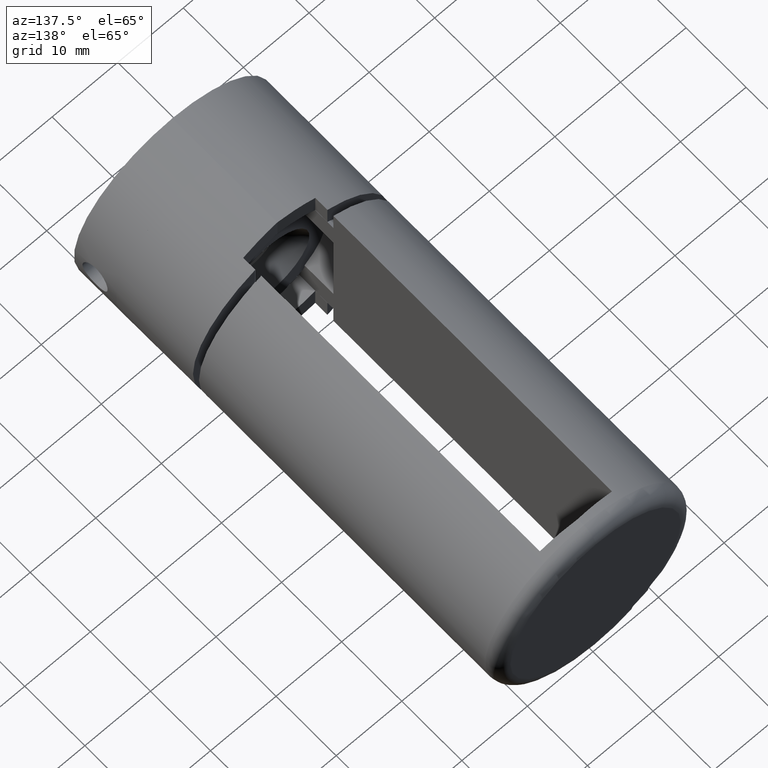
[diagram: clean part render]
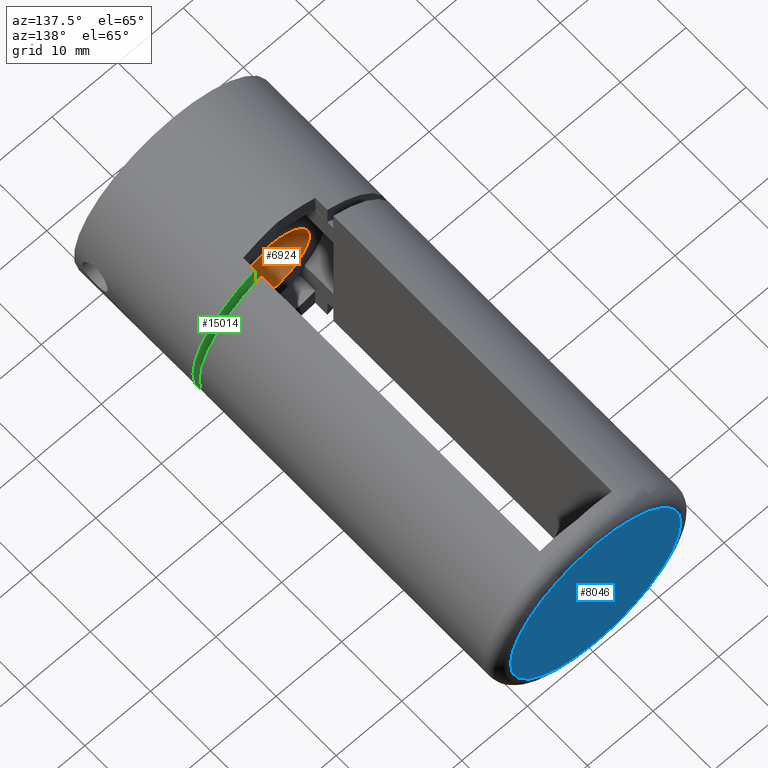
[diagram: same view with three faces highlighted in distinct colors, each labeled with its STEP entity id]
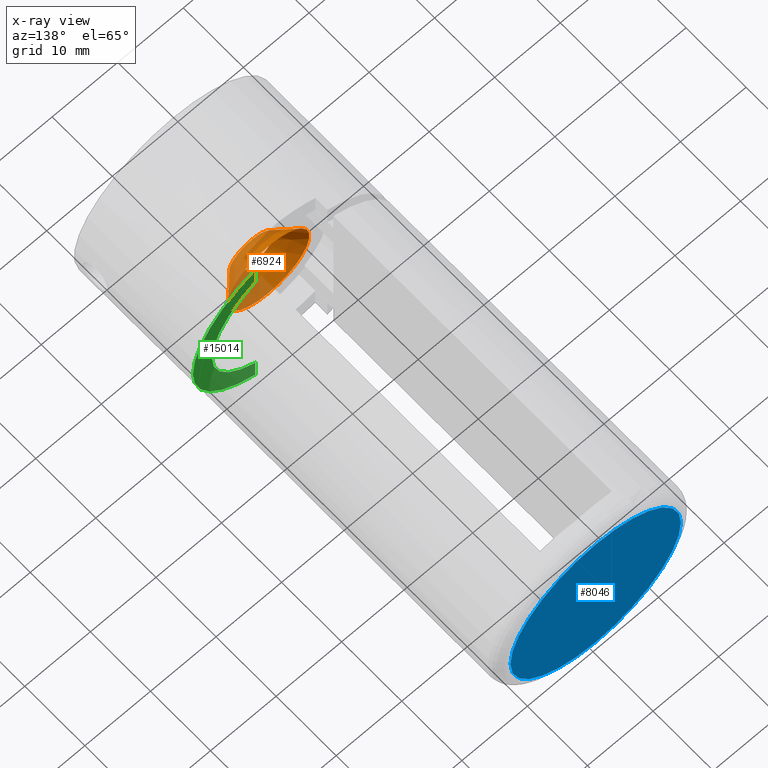
[diagram: x-ray of the same camera — body ghosted, the three highlighted faces saturated]
A machine part, auxiliary view with three faces highlighted in distinct colors.
The next image is the same camera in x-ray (body ghosted, the three faces saturated) — at least one of them is partly hidden behind the body in this view.
Their STEP definitions:

[orange] entity #6924 — the highlighted conical surface has half-angle 45 deg.
#597 = VERTEX_POINT ( 'NONE', #4215 ) ;
#1242 = CIRCLE ( 'NONE', #8287, 3.399999999999997700 ) ;
#2952 = DIRECTION ( 'NONE',  ( 0.0000000000000000000, 0.0000000000000000000, 1.000000000000000000 ) ) ;
#3055 = CARTESIAN_POINT ( 'NONE',  ( 0.0000000000000000000, 16.00000000000000000, 0.0000000000000000000 ) ) ;
#4163 = EDGE_CURVE ( 'NONE', #7113, #7113, #1242, .T. ) ;
#4215 = CARTESIAN_POINT ( 'NONE',  ( 0.0000000000000000000, 16.00000000000000000, 6.250000000000000000 ) ) ;
#4744 = DIRECTION ( 'NONE',  ( 0.0000000000000000000, 0.0000000000000000000, 1.000000000000000000 ) ) ;
#5565 = ORIENTED_EDGE ( 'NONE', *, *, #4163, .T. ) ;
#5615 = CONICAL_SURFACE ( 'NONE', #16265, 6.250000000000000000, 0.7853981633974487200 ) ;
#6924 = ADVANCED_FACE ( 'NONE', ( #13074, #9554 ), #5615, .F. ) ;
#7093 = DIRECTION ( 'NONE',  ( 0.0000000000000000000, 0.0000000000000000000, 1.000000000000000000 ) ) ;
#7113 = VERTEX_POINT ( 'NONE', #14892 ) ;
#7129 = DIRECTION ( 'NONE',  ( -0.0000000000000000000, 1.000000000000000000, -0.0000000000000000000 ) ) ;
#7160 = AXIS2_PLACEMENT_3D ( 'NONE', #13694, #15064, #7093 ) ;
#8287 = AXIS2_PLACEMENT_3D ( 'NONE', #14001, #15348, #4744 ) ;
#9554 = FACE_OUTER_BOUND ( 'NONE', #13765, .T. ) ;
#9604 = CIRCLE ( 'NONE', #7160, 6.250000000000000000 ) ;
#12006 = EDGE_CURVE ( 'NONE', #597, #597, #9604, .T. ) ;
#13074 = FACE_BOUND ( 'NONE', #16506, .T. ) ;
#13694 = CARTESIAN_POINT ( 'NONE',  ( 0.0000000000000000000, 16.00000000000000000, 0.0000000000000000000 ) ) ;
#13765 = EDGE_LOOP ( 'NONE', ( #14622 ) ) ;
#14001 = CARTESIAN_POINT ( 'NONE',  ( 0.0000000000000000000, 13.15000000000000000, 0.0000000000000000000 ) ) ;
#14622 = ORIENTED_EDGE ( 'NONE', *, *, #12006, .T. ) ;
#14892 = CARTESIAN_POINT ( 'NONE',  ( 0.0000000000000000000, 13.15000000000000000, 3.399999999999997700 ) ) ;
#15064 = DIRECTION ( 'NONE',  ( -0.0000000000000000000, 1.000000000000000000, -0.0000000000000000000 ) ) ;
#15348 = DIRECTION ( 'NONE',  ( 0.0000000000000000000, -1.000000000000000000, 0.0000000000000000000 ) ) ;
#16265 = AXIS2_PLACEMENT_3D ( 'NONE', #3055, #7129, #2952 ) ;
#16506 = EDGE_LOOP ( 'NONE', ( #5565 ) ) ;

[blue] entity #8046 — the highlighted planar face has unit normal (0, 1, 0).
#88 = AXIS2_PLACEMENT_3D ( 'NONE', #6239, #5996, #7359 ) ;
#2644 = CIRCLE ( 'NONE', #88, 13.00000000000000000 ) ;
#5996 = DIRECTION ( 'NONE',  ( 0.0000000000000000000, -1.000000000000000000, 0.0000000000000000000 ) ) ;
#6239 = CARTESIAN_POINT ( 'NONE',  ( 0.0000000000000000000, 1.500000000000000000, 0.0000000000000000000 ) ) ;
#6331 = PLANE ( 'NONE',  #16578 ) ;
#6379 = EDGE_CURVE ( 'NONE', #13322, #13322, #2644, .T. ) ;
#7359 = DIRECTION ( 'NONE',  ( 0.0000000000000000000, 0.0000000000000000000, -1.000000000000000000 ) ) ;
#7887 = FACE_OUTER_BOUND ( 'NONE', #12781, .T. ) ;
#8046 = ADVANCED_FACE ( 'NONE', ( #7887 ), #6331, .T. ) ;
#8946 = DIRECTION ( 'NONE',  ( 0.0000000000000000000, -0.0000000000000000000, -1.000000000000000000 ) ) ;
#10226 = CARTESIAN_POINT ( 'NONE',  ( 0.0000000000000000000, 1.500000000000000000, 0.0000000000000000000 ) ) ;
#10837 = ORIENTED_EDGE ( 'NONE', *, *, #6379, .T. ) ;
#12781 = EDGE_LOOP ( 'NONE', ( #10837 ) ) ;
#12977 = DIRECTION ( 'NONE',  ( 0.0000000000000000000, -1.000000000000000000, 0.0000000000000000000 ) ) ;
#13322 = VERTEX_POINT ( 'NONE', #15015 ) ;
#15015 = CARTESIAN_POINT ( 'NONE',  ( 0.0000000000000000000, 1.500000000000000000, -13.00000000000000000 ) ) ;
#16578 = AXIS2_PLACEMENT_3D ( 'NONE', #10226, #12977, #8946 ) ;

[green] entity #15014 — the highlighted planar face has unit normal (0, -1, 0).
#141 = ORIENTED_EDGE ( 'NONE', *, *, #4504, .T. ) ;
#600 = VERTEX_POINT ( 'NONE', #9974 ) ;
#842 = AXIS2_PLACEMENT_3D ( 'NONE', #16686, #4764, #6237 ) ;
#875 = CARTESIAN_POINT ( 'NONE',  ( 0.0000000000000000000, 0.0000000000000000000, 0.0000000000000000000 ) ) ;
#1018 = VECTOR ( 'NONE', #4441, 1000.000000000000000 ) ;
#1786 = LINE ( 'NONE', #5391, #12025 ) ;
#2154 = DIRECTION ( 'NONE',  ( 0.0000000000000000000, 1.000000000000000000, 0.0000000000000000000 ) ) ;
#2223 = VERTEX_POINT ( 'NONE', #17004 ) ;
#3059 = CIRCLE ( 'NONE', #5962, 15.00000000000000000 ) ;
#4441 = DIRECTION ( 'NONE',  ( -0.0000000000000000000, -0.0000000000000000000, 1.000000000000000000 ) ) ;
#4504 = EDGE_CURVE ( 'NONE', #600, #16694, #16553, .T. ) ;
#4764 = DIRECTION ( 'NONE',  ( 0.0000000000000000000, 1.000000000000000000, 0.0000000000000000000 ) ) ;
#5391 = CARTESIAN_POINT ( 'NONE',  ( -5.500000000000000000, 0.0000000000000000000, -15.00000000000000000 ) ) ;
#5689 = CARTESIAN_POINT ( 'NONE',  ( -5.500000000000000000, 0.0000000000000000000, -15.00000000000000000 ) ) ;
#5814 = CARTESIAN_POINT ( 'NONE',  ( -5.500000000000000000, 0.0000000000000000000, -13.95528573695286000 ) ) ;
#5962 = AXIS2_PLACEMENT_3D ( 'NONE', #875, #2154, #11657 ) ;
#6237 = DIRECTION ( 'NONE',  ( 0.0000000000000000000, 0.0000000000000000000, 1.000000000000000000 ) ) ;
#6756 = AXIS2_PLACEMENT_3D ( 'NONE', #13183, #13238, #14361 ) ;
#8815 = ORIENTED_EDGE ( 'NONE', *, *, #16766, .T. ) ;
#8954 = ORIENTED_EDGE ( 'NONE', *, *, #11966, .T. ) ;
#9974 = CARTESIAN_POINT ( 'NONE',  ( -5.500000000000000000, 0.0000000000000000000, -10.77775486824598200 ) ) ;
#10279 = CARTESIAN_POINT ( 'NONE',  ( -5.500000000000000000, 0.0000000000000000000, 10.77775486824598300 ) ) ;
#10336 = PLANE ( 'NONE',  #6756 ) ;
#11041 = VERTEX_POINT ( 'NONE', #5814 ) ;
#11657 = DIRECTION ( 'NONE',  ( 0.0000000000000000000, 0.0000000000000000000, 1.000000000000000000 ) ) ;
#11966 = EDGE_CURVE ( 'NONE', #16694, #2223, #13559, .T. ) ;
#12025 = VECTOR ( 'NONE', #17269, 1000.000000000000000 ) ;
#13183 = CARTESIAN_POINT ( 'NONE',  ( 0.0000000000000000000, 0.0000000000000000000, 0.0000000000000000000 ) ) ;
#13238 = DIRECTION ( 'NONE',  ( 0.0000000000000000000, 1.000000000000000000, 0.0000000000000000000 ) ) ;
#13559 = LINE ( 'NONE', #5689, #1018 ) ;
#14338 = FACE_OUTER_BOUND ( 'NONE', #16303, .T. ) ;
#14361 = DIRECTION ( 'NONE',  ( 0.0000000000000000000, -0.0000000000000000000, 1.000000000000000000 ) ) ;
#15014 = ADVANCED_FACE ( 'NONE', ( #14338 ), #10336, .F. ) ;
#16303 = EDGE_LOOP ( 'NONE', ( #16709, #8815, #141, #8954 ) ) ;
#16553 = CIRCLE ( 'NONE', #842, 12.10000000000000000 ) ;
#16686 = CARTESIAN_POINT ( 'NONE',  ( 0.0000000000000000000, 0.0000000000000000000, 0.0000000000000000000 ) ) ;
#16694 = VERTEX_POINT ( 'NONE', #10279 ) ;
#16709 = ORIENTED_EDGE ( 'NONE', *, *, #16988, .F. ) ;
#16766 = EDGE_CURVE ( 'NONE', #11041, #600, #1786, .T. ) ;
#16988 = EDGE_CURVE ( 'NONE', #11041, #2223, #3059, .T. ) ;
#17004 = CARTESIAN_POINT ( 'NONE',  ( -5.500000000000000000, 0.0000000000000000000, 13.95528573695285800 ) ) ;
#17269 = DIRECTION ( 'NONE',  ( -0.0000000000000000000, -0.0000000000000000000, 1.000000000000000000 ) ) ;